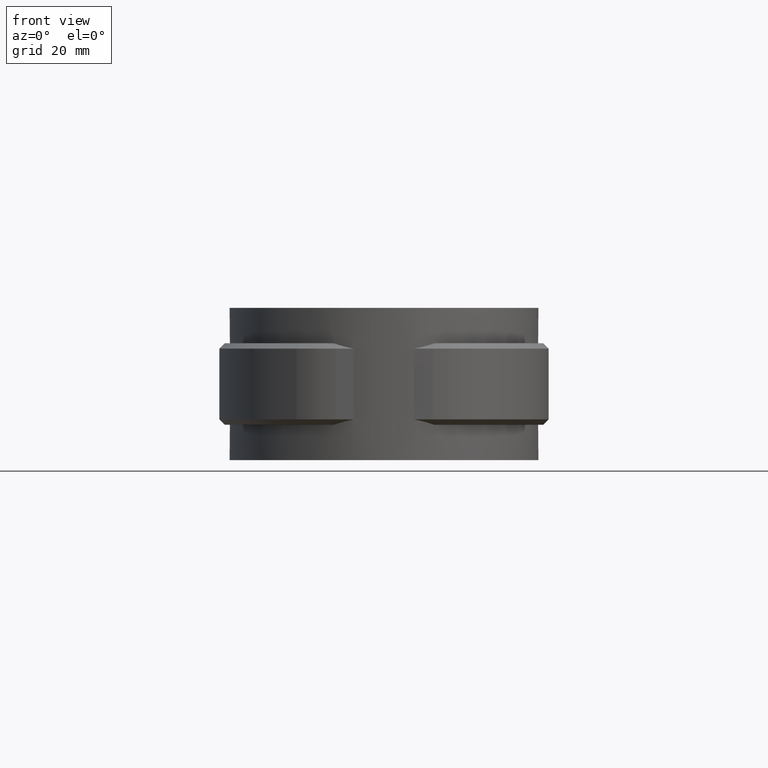
[diagram: clean part render]
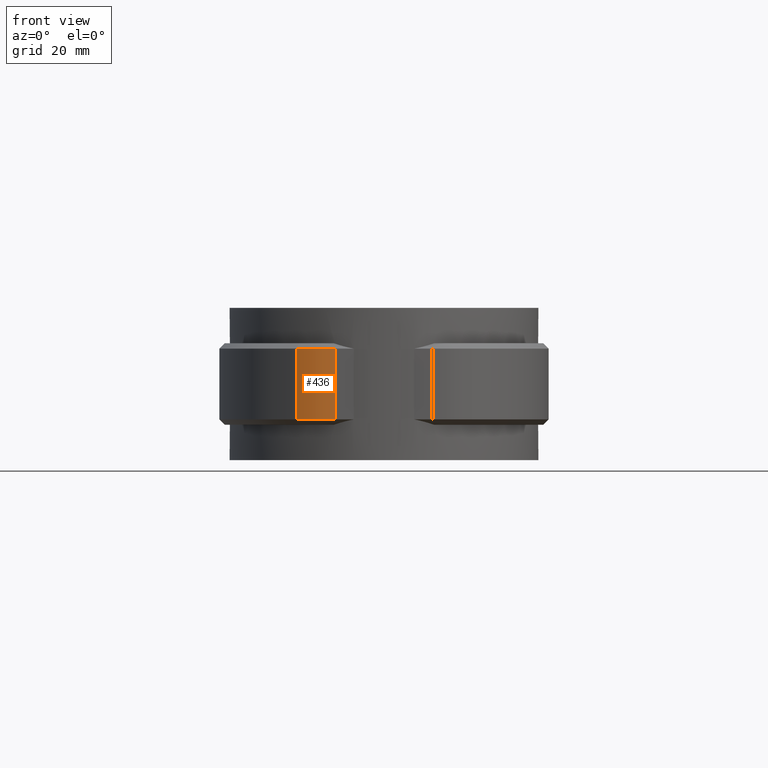
[diagram: same view with one face highlighted and labeled with its STEP entity id]
A machine part, front view. The second image highlights one B-rep face of the part: STEP entity #436.
In plain terms, the highlighted cylindrical surface (partial cylindrical patch) has radius 13.6 mm, axis along (0, 0, -1).
Its self-contained STEP definition (entity closure, byte-faithful):
#436 = ADVANCED_FACE( '', ( #803 ), #804, .T. );
#803 = FACE_OUTER_BOUND( '', #1936, .T. );
#804 = CYLINDRICAL_SURFACE( '', #1937, 13.6000000000000 );
#1936 = EDGE_LOOP( '', ( #4525, #4526, #4527, #4528 ) );
#1937 = AXIS2_PLACEMENT_3D( '', #4529, #4530, #4531 );
#4525 = ORIENTED_EDGE( '', *, *, #5896, .F. );
#4526 = ORIENTED_EDGE( '', *, *, #5897, .T. );
#4527 = ORIENTED_EDGE( '', *, *, #5898, .T. );
#4528 = ORIENTED_EDGE( '', *, *, #5899, .T. );
#4529 = CARTESIAN_POINT( '', ( -8.88873022427839, -14.2500000000000, -20.0000000000000 ) );
#4530 = DIRECTION( '', ( 0.000000000000000, 0.000000000000000, -1.00000000000000 ) );
#4531 = DIRECTION( '', ( 0.194983714095246, 0.980806480014087, 0.000000000000000 ) );
#5896 = EDGE_CURVE( '', #6830, #6831, #6832, .T. );
#5897 = EDGE_CURVE( '', #6830, #6833, #6834, .F. );
#5898 = EDGE_CURVE( '', #6833, #6835, #6836, .T. );
#5899 = EDGE_CURVE( '', #6835, #6831, #6837, .T. );
#6830 = VERTEX_POINT( '', #10428 );
#6831 = VERTEX_POINT( '', #10429 );
#6832 = LINE( '', #10430, #10431 );
#6833 = VERTEX_POINT( '', #10432 );
#6834 = CIRCLE( '', #10433, 13.6000000000000 );
#6835 = VERTEX_POINT( '', #10434 );
#6836 = LINE( '', #10435, #10436 );
#6837 = CIRCLE( '', #10437, 13.6000000000000 );
#10428 = CARTESIAN_POINT( '', ( -16.0865111739769, -25.7891485561179, -19.0000000000000 ) );
#10429 = CARTESIAN_POINT( '', ( -16.0865111739769, -25.7891485561179, -6.00000000000000 ) );
#10430 = CARTESIAN_POINT( '', ( -16.0865111739769, -25.7891485561179, -20.0000000000000 ) );
#10431 = VECTOR( '', #11521, 1000.00000000000 );
#10432 = CARTESIAN_POINT( '', ( -8.88873022427839, -27.8500000000000, -19.0000000000000 ) );
#10433 = AXIS2_PLACEMENT_3D( '', #11522, #11523, #11524 );
#10434 = CARTESIAN_POINT( '', ( -8.88873022427839, -27.8500000000000, -6.00000000000000 ) );
#10435 = CARTESIAN_POINT( '', ( -8.88873022427839, -27.8500000000000, -20.0000000000000 ) );
#10436 = VECTOR( '', #11525, 1000.00000000000 );
#10437 = AXIS2_PLACEMENT_3D( '', #11526, #11527, #11528 );
#11521 = DIRECTION( '', ( 0.000000000000000, 0.000000000000000, 1.00000000000000 ) );
#11522 = CARTESIAN_POINT( '', ( -8.88873022427839, -14.2500000000000, -19.0000000000000 ) );
#11523 = DIRECTION( '', ( 0.000000000000000, 0.000000000000000, -1.00000000000000 ) );
#11524 = DIRECTION( '', ( -1.00000000000000, 0.000000000000000, 0.000000000000000 ) );
#11525 = DIRECTION( '', ( 0.000000000000000, 0.000000000000000, 1.00000000000000 ) );
#11526 = CARTESIAN_POINT( '', ( -8.88873022427839, -14.2500000000000, -6.00000000000000 ) );
#11527 = DIRECTION( '', ( 0.000000000000000, 0.000000000000000, -1.00000000000000 ) );
#11528 = DIRECTION( '', ( -1.00000000000000, 0.000000000000000, 0.000000000000000 ) );